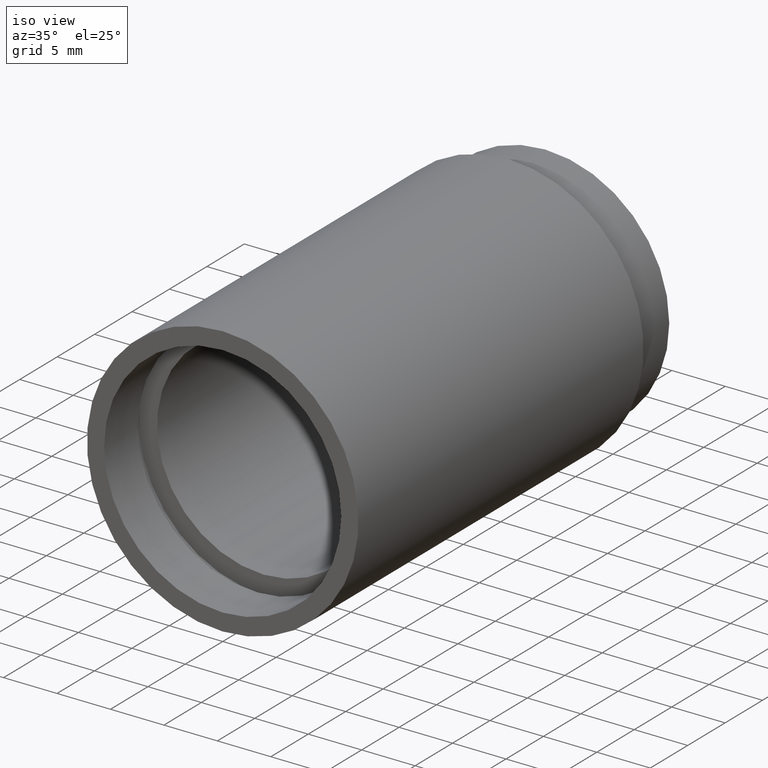
[diagram: clean part render]
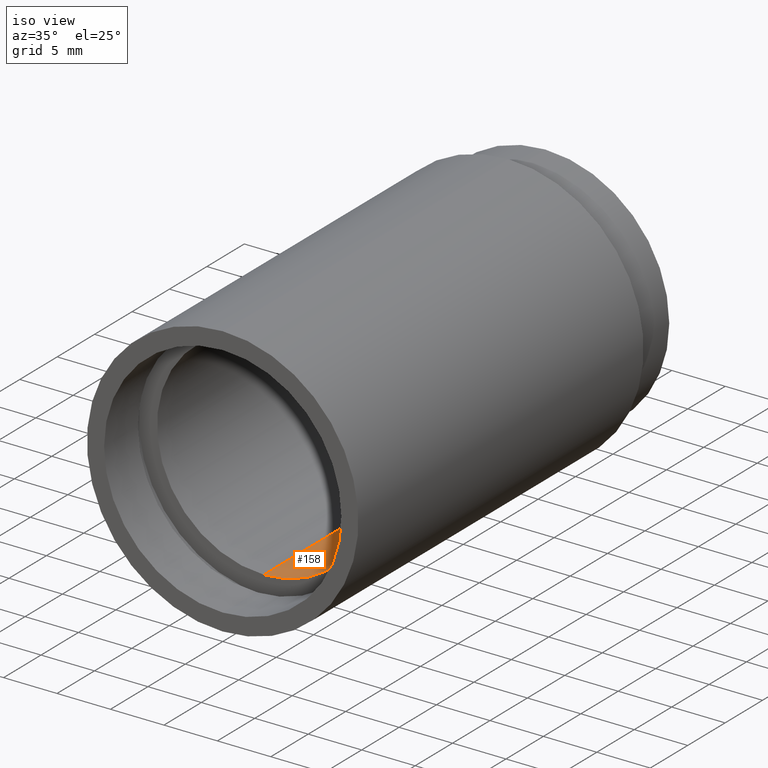
[diagram: same view with one face highlighted and labeled with its STEP entity id]
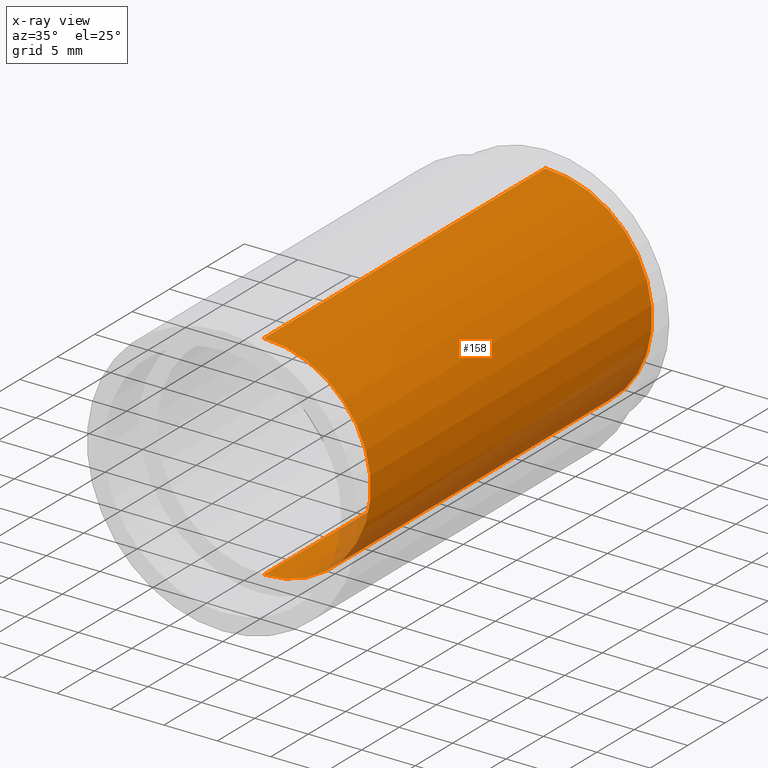
[diagram: x-ray of the same camera — body ghosted, the highlighted face saturated]
A machine part, iso view. The second image highlights one B-rep face of the part: STEP entity #158.
The next image is the same camera in x-ray: the body ghosted, the highlighted face saturated — about 10% of this face is hidden behind the body in this view.
In plain terms, the highlighted cylindrical surface (partial cylindrical patch) has radius 10 mm, axis along (-0, 1, -0).
Its self-contained STEP definition (entity closure, byte-faithful):
#3 = EDGE_CURVE ( 'NONE', #207, #395, #298, .T. ) ;
#17 = CARTESIAN_POINT ( 'NONE',  ( 0.0000000000000000000, 43.09999999999998700, 10.00000000000002000 ) ) ;
#47 = VECTOR ( 'NONE', #213, 1000.000000000000000 ) ;
#49 = EDGE_LOOP ( 'NONE', ( #163, #147, #464, #623 ) ) ;
#58 = CARTESIAN_POINT ( 'NONE',  ( 1.224646799147355400E-015, 161.3761669434274500, -10.00000000000002000 ) ) ;
#59 = AXIS2_PLACEMENT_3D ( 'NONE', #120, #310, #537 ) ;
#117 = LINE ( 'NONE', #58, #565 ) ;
#120 = CARTESIAN_POINT ( 'NONE',  ( 0.0000000000000000000, 43.09999999999998700, 0.0000000000000000000 ) ) ;
#147 = ORIENTED_EDGE ( 'NONE', *, *, #438, .F. ) ;
#158 = ADVANCED_FACE ( 'NONE', ( #382 ), #280, .F. ) ;
#163 = ORIENTED_EDGE ( 'NONE', *, *, #424, .F. ) ;
#166 = CARTESIAN_POINT ( 'NONE',  ( 0.0000000000000000000, 5.499999999999976900, 0.0000000000000000000 ) ) ;
#168 = DIRECTION ( 'NONE',  ( -0.0000000000000000000, 1.000000000000000000, -0.0000000000000000000 ) ) ;
#186 = VERTEX_POINT ( 'NONE', #335 ) ;
#207 = VERTEX_POINT ( 'NONE', #295 ) ;
#213 = DIRECTION ( 'NONE',  ( -0.0000000000000000000, 1.000000000000000000, -0.0000000000000000000 ) ) ;
#259 = DIRECTION ( 'NONE',  ( -0.0000000000000000000, 1.000000000000000000, -0.0000000000000000000 ) ) ;
#280 = CYLINDRICAL_SURFACE ( 'NONE', #346, 10.00000000000002000 ) ;
#295 = CARTESIAN_POINT ( 'NONE',  ( 0.0000000000000000000, 5.499999999999976900, 10.00000000000002000 ) ) ;
#298 = LINE ( 'NONE', #493, #47 ) ;
#310 = DIRECTION ( 'NONE',  ( -0.0000000000000000000, 1.000000000000000000, -0.0000000000000000000 ) ) ;
#326 = CARTESIAN_POINT ( 'NONE',  ( 0.0000000000000000000, 161.3761669434274500, 0.0000000000000000000 ) ) ;
#335 = CARTESIAN_POINT ( 'NONE',  ( 1.224646799147355400E-015, 43.09999999999998700, -10.00000000000002000 ) ) ;
#346 = AXIS2_PLACEMENT_3D ( 'NONE', #326, #372, #615 ) ;
#348 = CARTESIAN_POINT ( 'NONE',  ( 1.224646799147355400E-015, 5.499999999999976900, -10.00000000000002000 ) ) ;
#372 = DIRECTION ( 'NONE',  ( -0.0000000000000000000, 1.000000000000000000, -0.0000000000000000000 ) ) ;
#382 = FACE_OUTER_BOUND ( 'NONE', #49, .T. ) ;
#393 = VERTEX_POINT ( 'NONE', #348 ) ;
#395 = VERTEX_POINT ( 'NONE', #17 ) ;
#411 = EDGE_CURVE ( 'NONE', #395, #186, #526, .T. ) ;
#424 = EDGE_CURVE ( 'NONE', #393, #186, #117, .T. ) ;
#438 = EDGE_CURVE ( 'NONE', #207, #393, #471, .T. ) ;
#464 = ORIENTED_EDGE ( 'NONE', *, *, #3, .T. ) ;
#471 = CIRCLE ( 'NONE', #622, 10.00000000000002000 ) ;
#493 = CARTESIAN_POINT ( 'NONE',  ( 0.0000000000000000000, 161.3761669434274500, 10.00000000000002000 ) ) ;
#496 = DIRECTION ( 'NONE',  ( 0.0000000000000000000, 0.0000000000000000000, 1.000000000000000000 ) ) ;
#526 = CIRCLE ( 'NONE', #59, 10.00000000000002000 ) ;
#537 = DIRECTION ( 'NONE',  ( 0.0000000000000000000, 0.0000000000000000000, 1.000000000000000000 ) ) ;
#565 = VECTOR ( 'NONE', #168, 1000.000000000000000 ) ;
#615 = DIRECTION ( 'NONE',  ( 0.0000000000000000000, 0.0000000000000000000, 1.000000000000000000 ) ) ;
#622 = AXIS2_PLACEMENT_3D ( 'NONE', #166, #259, #496 ) ;
#623 = ORIENTED_EDGE ( 'NONE', *, *, #411, .T. ) ;